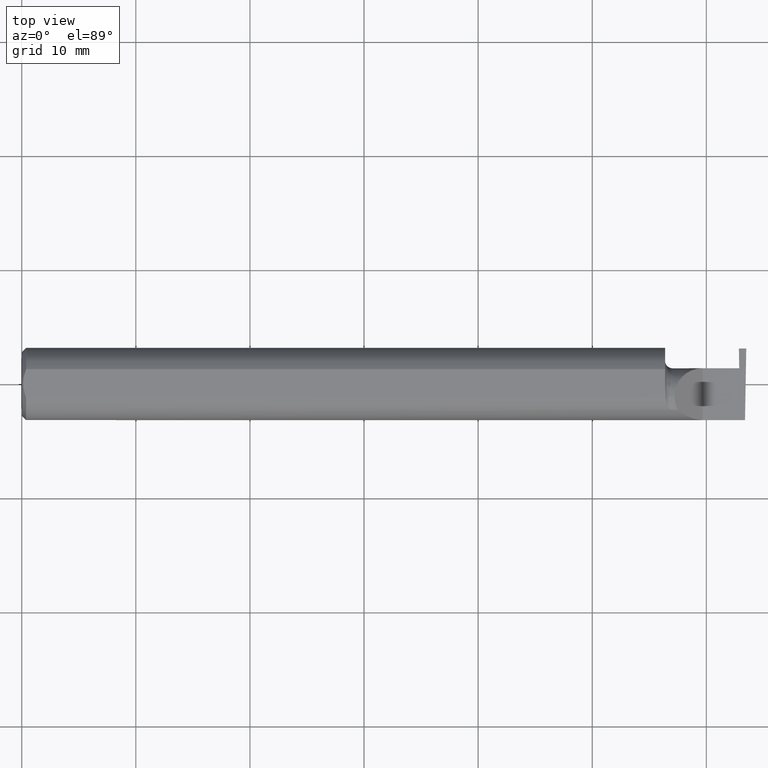
[diagram: clean part render]
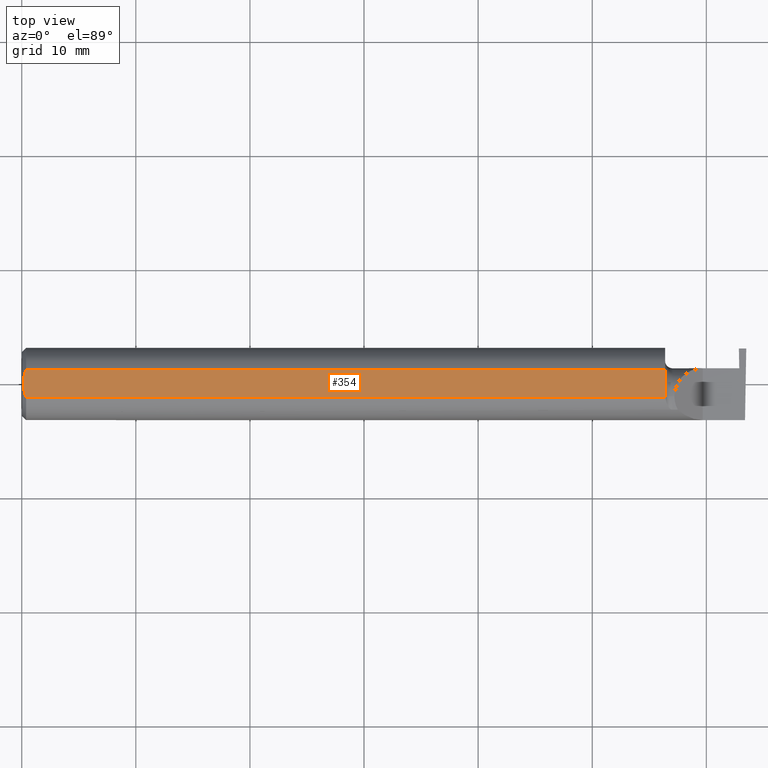
[diagram: same view with one face highlighted and labeled with its STEP entity id]
A machine part, top view. The second image highlights one B-rep face of the part: STEP entity #354.
In plain terms, the highlighted planar face has unit normal (0, -0, 1).
Its self-contained STEP definition (entity closure, byte-faithful):
#13 = EDGE_CURVE ( 'NONE', #532, #574, #722, .T. ) ;
#24 = ORIENTED_EDGE ( 'NONE', *, *, #370, .T. ) ;
#35 = CARTESIAN_POINT ( 'NONE',  ( 0.005932194444709711773, -0.01671525318617311101, 0.1148500000000000215 ) ) ;
#38 = LINE ( 'NONE', #223, #513 ) ;
#44 = ORIENTED_EDGE ( 'NONE', *, *, #222, .T. ) ;
#53 = EDGE_LOOP ( 'NONE', ( #621, #135, #661, #24, #583, #764, #44 ) ) ;
#58 = CARTESIAN_POINT ( 'NONE',  ( 0.005947935873631229539, 0.01679708999422689988, 0.1148500000000000076 ) ) ;
#76 = CARTESIAN_POINT ( 'NONE',  ( 2.219999999999999751, 0.04895916665957496944, 0.1148500000000000076 ) ) ;
#102 = EDGE_CURVE ( 'NONE', #574, #201, #289, .T. ) ;
#115 = CARTESIAN_POINT ( 'NONE',  ( 0.004999999999999990563, 1.454187663965904829E-17, 0.1148500000000000076 ) ) ;
#121 = DIRECTION ( 'NONE',  ( -0.000000000000000000, 1.000000000000000000, 0.000000000000000000 ) ) ;
#125 = DIRECTION ( 'NONE',  ( 0.000000000000000000, -0.000000000000000000, 1.000000000000000000 ) ) ;
#135 = ORIENTED_EDGE ( 'NONE', *, *, #102, .T. ) ;
#161 = CARTESIAN_POINT ( 'NONE',  ( 2.219999999999999751, 0.0001781444078671173391, 0.1148500000000000076 ) ) ;
#166 = CARTESIAN_POINT ( 'NONE',  ( 2.221090261106631658, -0.02916888161107699176, 0.1148499999999999938 ) ) ;
#174 = DIRECTION ( 'NONE',  ( 1.000000000000000000, 0.000000000000000000, -0.000000000000000000 ) ) ;
#184 = CARTESIAN_POINT ( 'NONE',  ( 0.004999999999999962808, 0.008410227287019804779, 0.1148500000000000076 ) ) ;
#185 = B_SPLINE_CURVE_WITH_KNOTS ( 'NONE', 3,
 ( #314, #648, #35, #521, #584, #272 ),
 .UNSPECIFIED., .F., .F.,
 ( 4, 2, 4 ),
 ( 0.003658435455108828907, 0.004289327297787135992, 0.004920219140465443078 ),
 .UNSPECIFIED. ) ;
#188 = CARTESIAN_POINT ( 'NONE',  ( 0.009410502401328750890, 0.03310661131402438395, 0.1148499999999999938 ) ) ;
#201 = VERTEX_POINT ( 'NONE', #747 ) ;
#222 = EDGE_CURVE ( 'NONE', #627, #532, #185, .T. ) ;
#223 = CARTESIAN_POINT ( 'NONE',  ( 0.000000000000000000, 0.04895916665957456698, 0.1148500000000000076 ) ) ;
#225 = CARTESIAN_POINT ( 'NONE',  ( 2.221326891871145737, -0.04895916665872793172, 0.1148500000000000076 ) ) ;
#248 = CARTESIAN_POINT ( 'NONE',  ( 2.219999999999999751, -0.007185495981951162819, 0.1148500000000000076 ) ) ;
#260 = EDGE_CURVE ( 'NONE', #649, #694, #38, .T. ) ;
#263 = AXIS2_PLACEMENT_3D ( 'NONE', #557, #125, #174 ) ;
#272 = CARTESIAN_POINT ( 'NONE',  ( 0.01499999999999999944, -0.04895916665957456698, 0.1148500000000000076 ) ) ;
#276 = VECTOR ( 'NONE', #121, 39.37007874015748143 ) ;
#289 = B_SPLINE_CURVE_WITH_KNOTS ( 'NONE', 3,
 ( #225, #474, #409, #389, #505, #379 ),
 .UNSPECIFIED., .F., .F.,
 ( 4, 2, 4 ),
 ( 0.009355404735398592173, 0.009420041905761879220, 0.009484679076125168001 ),
 .UNSPECIFIED. ) ;
#310 = VERTEX_POINT ( 'NONE', #161 ) ;
#314 = CARTESIAN_POINT ( 'NONE',  ( 0.004999999999999990563, 1.454187663965904829E-17, 0.1148500000000000076 ) ) ;
#329 = CARTESIAN_POINT ( 'NONE',  ( 2.220400390612615737, -0.01449983562810953051, 0.1148500000000000076 ) ) ;
#343 = EDGE_CURVE ( 'NONE', #201, #310, #614, .T. ) ;
#354 = ADVANCED_FACE ( 'NONE', ( #677 ), #609, .T. ) ;
#357 = CARTESIAN_POINT ( 'NONE',  ( 0.004999999999999990563, 1.454187663965904829E-17, 0.1148500000000000076 ) ) ;
#370 = EDGE_CURVE ( 'NONE', #310, #649, #560, .T. ) ;
#379 = CARTESIAN_POINT ( 'NONE',  ( 2.221365755776839368, -0.04385000000000001397, 0.1148500000000000076 ) ) ;
#389 = CARTESIAN_POINT ( 'NONE',  ( 2.221362484147031413, -0.04555293790425277156, 0.1148500000000000076 ) ) ;
#402 = EDGE_CURVE ( 'NONE', #694, #627, #573, .T. ) ;
#409 = CARTESIAN_POINT ( 'NONE',  ( 2.221349474459144435, -0.04725615951663613562, 0.1148499999999999938 ) ) ;
#412 = DIRECTION ( 'NONE',  ( -1.000000000000000000, -0.000000000000000000, -0.000000000000000000 ) ) ;
#417 = DIRECTION ( 'NONE',  ( 1.000000000000000000, 0.000000000000000000, 0.000000000000000000 ) ) ;
#423 = CARTESIAN_POINT ( 'NONE',  ( 2.219999999999999751, 0.0001781444078671173391, 0.1148500000000000076 ) ) ;
#433 = CARTESIAN_POINT ( 'NONE',  ( 0.01193974418109658951, 0.04115525648180412555, 0.1148500000000000215 ) ) ;
#474 = CARTESIAN_POINT ( 'NONE',  ( 2.221339737566979888, -0.04810771334161585006, 0.1148500000000000215 ) ) ;
#505 = CARTESIAN_POINT ( 'NONE',  ( 2.221365755776838924, -0.04470142129437115752, 0.1148500000000000076 ) ) ;
#513 = VECTOR ( 'NONE', #412, 39.37007874015748143 ) ;
#521 = CARTESIAN_POINT ( 'NONE',  ( 0.009415874254822409126, -0.03313958207962818675, 0.1148500000000000076 ) ) ;
#532 = VERTEX_POINT ( 'NONE', #667 ) ;
#541 = CARTESIAN_POINT ( 'NONE',  ( 0.000000000000000000, -0.04895916665957456698, 0.1148500000000000076 ) ) ;
#557 = CARTESIAN_POINT ( 'NONE',  ( 2.500000000000000000, -0.1248500000000000165, 0.1148500000000000076 ) ) ;
#560 = LINE ( 'NONE', #666, #276 ) ;
#573 = B_SPLINE_CURVE_WITH_KNOTS ( 'NONE', 3,
 ( #619, #433, #188, #58, #184, #115 ),
 .UNSPECIFIED., .F., .F.,
 ( 4, 2, 4 ),
 ( 0.002396733445051246140, 0.003027584450080037307, 0.003658435455108828907 ),
 .UNSPECIFIED. ) ;
#574 = VERTEX_POINT ( 'NONE', #784 ) ;
#583 = ORIENTED_EDGE ( 'NONE', *, *, #260, .T. ) ;
#584 = CARTESIAN_POINT ( 'NONE',  ( 0.01195732443765547617, -0.04120008761723503721, 0.1148499999999999938 ) ) ;
#589 = CARTESIAN_POINT ( 'NONE',  ( 2.221365755776838924, -0.03650542768109172470, 0.1148500000000000215 ) ) ;
#605 = VECTOR ( 'NONE', #417, 39.37007874015748143 ) ;
#609 = PLANE ( 'NONE',  #263 ) ;
#614 = B_SPLINE_CURVE_WITH_KNOTS ( 'NONE', 3,
 ( #720, #589, #166, #329, #248, #423 ),
 .UNSPECIFIED., .F., .F.,
 ( 4, 2, 4 ),
 ( 0.009484679076125168001, 0.01004225541977700302, 0.01059983176342883804 ),
 .UNSPECIFIED. ) ;
#619 = CARTESIAN_POINT ( 'NONE',  ( 0.01499999999999987454, 0.04895916665957496944, 0.1148500000000000076 ) ) ;
#621 = ORIENTED_EDGE ( 'NONE', *, *, #13, .T. ) ;
#627 = VERTEX_POINT ( 'NONE', #357 ) ;
#648 = CARTESIAN_POINT ( 'NONE',  ( 0.004999999999999964542, -0.008410771716546833199, 0.1148500000000000215 ) ) ;
#649 = VERTEX_POINT ( 'NONE', #76 ) ;
#661 = ORIENTED_EDGE ( 'NONE', *, *, #343, .T. ) ;
#666 = CARTESIAN_POINT ( 'NONE',  ( 2.219999999999999751, -0.1248500000000000165, 0.1148500000000000076 ) ) ;
#667 = CARTESIAN_POINT ( 'NONE',  ( 0.01499999999999999944, -0.04895916665957456698, 0.1148500000000000076 ) ) ;
#677 = FACE_OUTER_BOUND ( 'NONE', #53, .T. ) ;
#686 = CARTESIAN_POINT ( 'NONE',  ( 0.01499999999999987454, 0.04895916665957496944, 0.1148500000000000076 ) ) ;
#694 = VERTEX_POINT ( 'NONE', #686 ) ;
#720 = CARTESIAN_POINT ( 'NONE',  ( 2.221365755776839368, -0.04385000000000001397, 0.1148500000000000076 ) ) ;
#722 = LINE ( 'NONE', #541, #605 ) ;
#747 = CARTESIAN_POINT ( 'NONE',  ( 2.221365755776839368, -0.04385000000000001397, 0.1148500000000000076 ) ) ;
#764 = ORIENTED_EDGE ( 'NONE', *, *, #402, .T. ) ;
#784 = CARTESIAN_POINT ( 'NONE',  ( 2.221326891871145737, -0.04895916665872793172, 0.1148500000000000076 ) ) ;